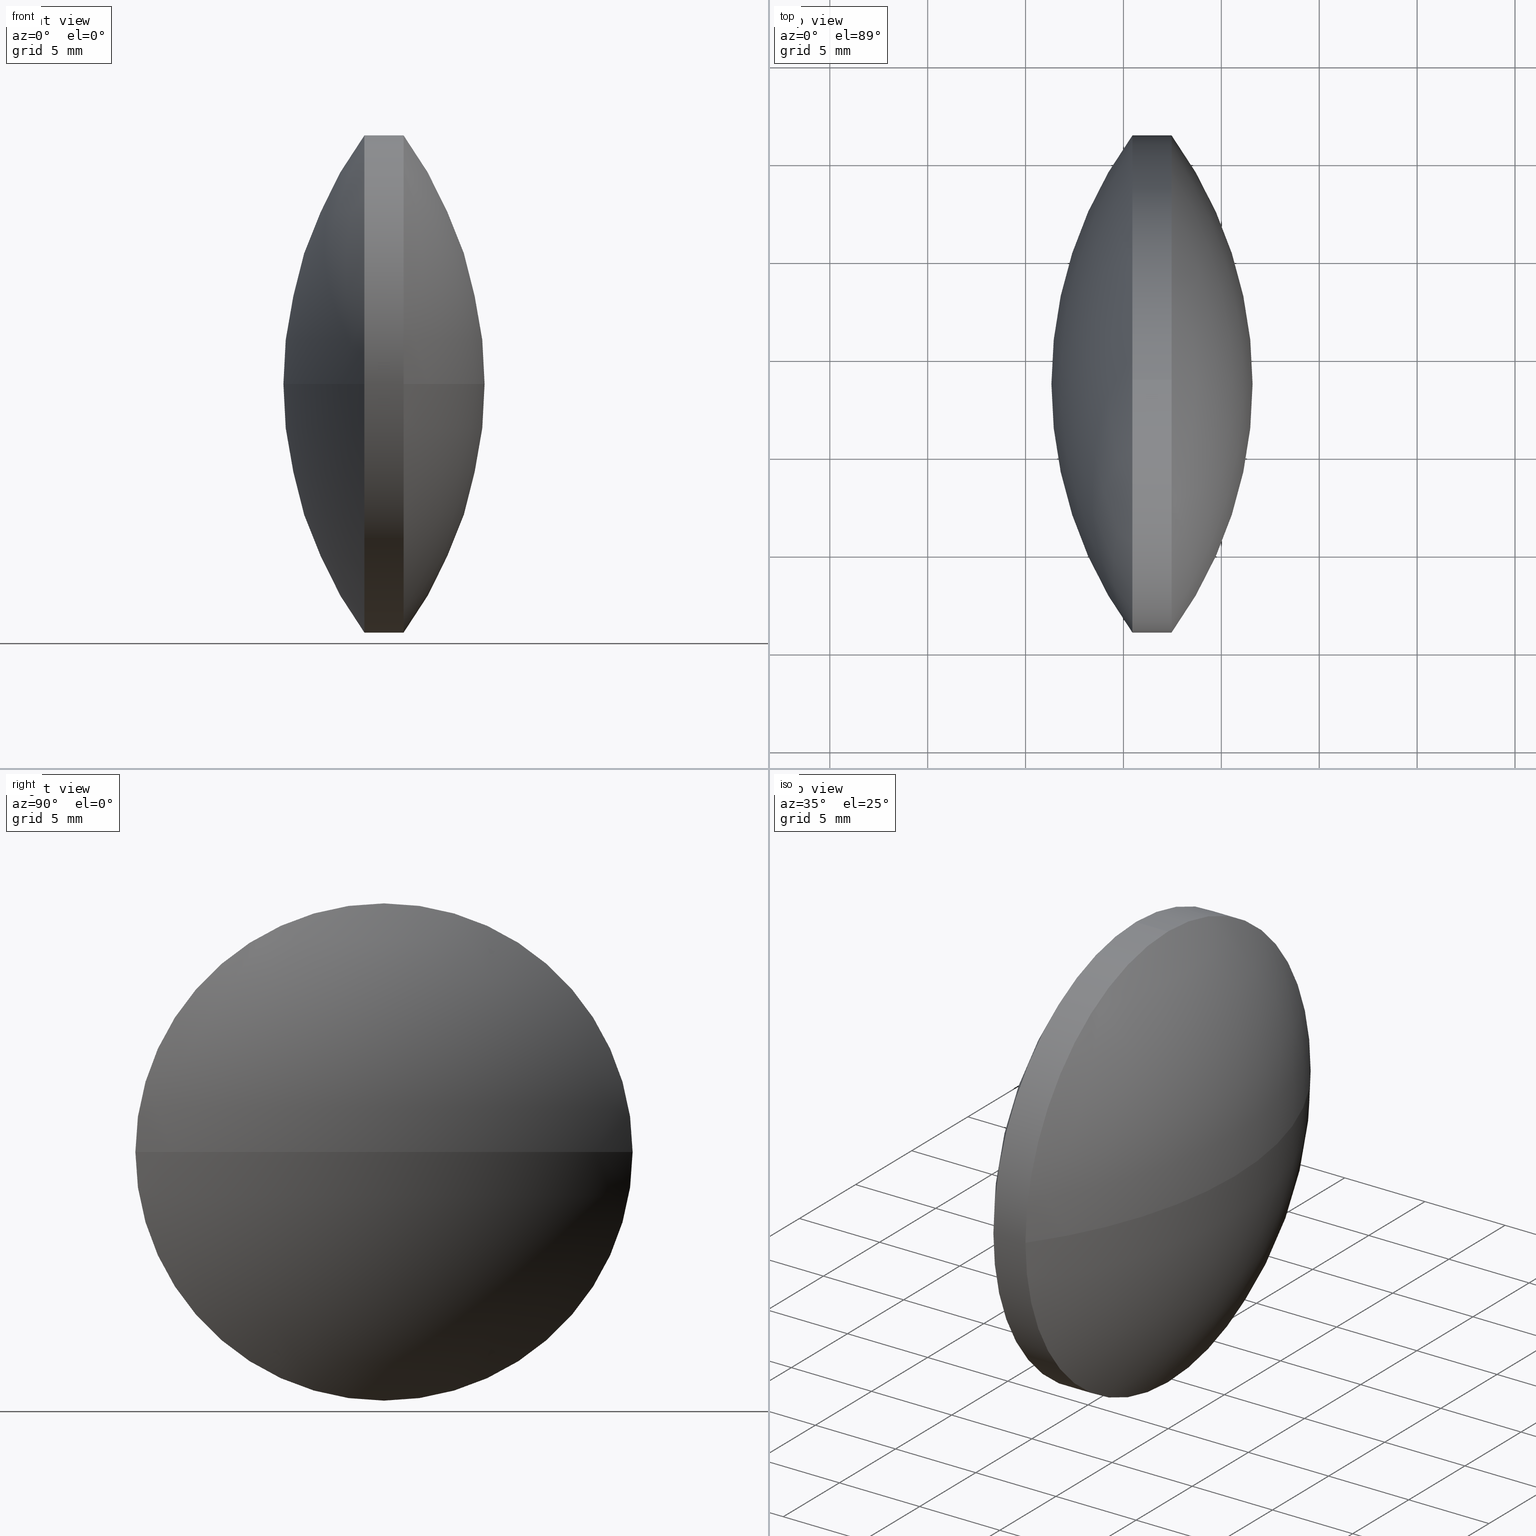
[diagram: canonical four-view strip — front | top / right | iso, engineering-drawing reading convention]
A machine part, canonical four-view strip (front | top / right | iso — engineering-drawing reading convention). The complete STEP part file that produces these views, byte-faithful:
ISO-10303-21;
HEADER;
FILE_DESCRIPTION (( 'STEP AP203' ),
    '1' );
FILE_NAME ('110097.STEP',
    '2019-07-08T06:24:45',
    ( '' ),
    ( '' ),
    'SwSTEP 2.0',
    'SolidWorks 2016',
    '' );
FILE_SCHEMA (( 'CONFIG_CONTROL_DESIGN' ));
ENDSEC;

DATA;
#1 = ORIENTED_EDGE ( 'NONE', *, *, #338, .F. ) ;
#2 = DIRECTION ( 'NONE',  ( 0.0000000000000000000, 0.0000000000000000000, 1.000000000000000000 ) ) ;
#3 = PERSON_AND_ORGANIZATION_ROLE ( 'classification_officer' ) ;
#4 = AXIS2_PLACEMENT_3D ( 'NONE', #295, #183, #216 ) ;
#5 = VERTEX_POINT ( 'NONE', #93 ) ;
#6 = APPLICATION_PROTOCOL_DEFINITION ( 'international standard', 'config_control_design', 1994, #165 ) ;
#7 = CC_DESIGN_APPROVAL ( #162, ( #147 ) ) ;
#8 = APPROVAL_ROLE ( '' ) ;
#9 = COORDINATED_UNIVERSAL_TIME_OFFSET ( 8, 0, .AHEAD. ) ;
#10 = EDGE_LOOP ( 'NONE', ( #120, #320, #149, #215 ) ) ;
#11 = EDGE_CURVE ( 'NONE', #5, #302, #306, .T. ) ;
#12 = CARTESIAN_POINT ( 'NONE',  ( 102.8733814727447100, 48.61611302318478100, 0.0000000000000000000 ) ) ;
#13 = COORDINATED_UNIVERSAL_TIME_OFFSET ( 8, 0, .AHEAD. ) ;
#14 = SPHERICAL_SURFACE ( 'NONE', #153, 21.55382375359854700 ) ;
#15 = VERTEX_POINT ( 'NONE', #124 ) ;
#16 = APPROVAL ( #282, 'δָ��' ) ;
#17 = COORDINATED_UNIVERSAL_TIME_OFFSET ( 8, 0, .AHEAD. ) ;
#18 = CIRCLE ( 'NONE', #286, 12.69999999999999600 ) ;
#19 = CIRCLE ( 'NONE', #25, 21.55382375359854300 ) ;
#20 = DIRECTION ( 'NONE',  ( -0.0000000000000000000, 0.0000000000000000000, -1.000000000000000000 ) ) ;
#21 = AXIS2_PLACEMENT_3D ( 'NONE', #78, #308, #275 ) ;
#22 = PRODUCT_DEFINITION_SHAPE ( 'NONE', 'NONE',  #23 ) ;
#23 = PRODUCT_DEFINITION ( 'δ֪', '', #56, #131 ) ;
#24 = ORIENTED_EDGE ( 'NONE', *, *, #11, .F. ) ;
#25 = AXIS2_PLACEMENT_3D ( 'NONE', #40, #294, #236 ) ;
#26 = DATE_AND_TIME ( #219, #116 ) ;
#27 = APPLICATION_PROTOCOL_DEFINITION ( 'international standard', 'config_control_design', 1994, #188 ) ;
#28 = APPROVAL_PERSON_ORGANIZATION ( #331, #162, #30 ) ;
#29 = VECTOR ( 'NONE', #266, 1000.000000000000000 ) ;
#30 = APPROVAL_ROLE ( '' ) ;
#31 = APPROVAL_STATUS ( 'not_yet_approved' ) ;
#32 = AXIS2_PLACEMENT_3D ( 'NONE', #284, #332, #169 ) ;
#33 = COORDINATED_UNIVERSAL_TIME_OFFSET ( 8, 0, .AHEAD. ) ;
#34 = CIRCLE ( 'NONE', #330, 21.55382375359857100 ) ;
#35 = APPLICATION_PROTOCOL_DEFINITION ( 'international standard', 'config_control_design', 1994, #109 ) ;
#36 = APPROVAL_PERSON_ORGANIZATION ( #37, #115, #305 ) ;
#37 = PERSON_AND_ORGANIZATION ( #245, #243 ) ;
#38 = EDGE_LOOP ( 'NONE', ( #111, #315, #289, #251 ) ) ;
#39 = CC_DESIGN_PERSON_AND_ORGANIZATION_ASSIGNMENT ( #134, #136, ( #213 ) ) ;
#40 = CARTESIAN_POINT ( 'NONE',  ( 70.04300607658039700, 48.61611302318478100, 0.0000000000000000000 ) ) ;
#41 = LOCAL_TIME ( 14, 24, 45.00000000000000000, #76 ) ;
#42 = CARTESIAN_POINT ( 'NONE',  ( 85.45852234609111500, 48.61611302318478100, -12.69999999999999600 ) ) ;
#43 = SHAPE_DEFINITION_REPRESENTATION ( #22, #321 ) ;
#44 = DIRECTION ( 'NONE',  ( -1.000000000000000000, -0.0000000000000000000, -0.0000000000000000000 ) ) ;
#45 = CIRCLE ( 'NONE', #333, 12.69999999999999600 ) ;
#46 = VERTEX_POINT ( 'NONE', #42 ) ;
#47 = AXIS2_PLACEMENT_3D ( 'NONE', #307, #328, #159 ) ;
#48 = DATE_AND_TIME ( #260, #84 ) ;
#49 = CC_DESIGN_PERSON_AND_ORGANIZATION_ASSIGNMENT ( #334, #248, ( #150 ) ) ;
#50 = PERSON_AND_ORGANIZATION_ROLE ( 'creator' ) ;
#51 = DIRECTION ( 'NONE',  ( 0.0000000000000000000, 0.0000000000000000000, 1.000000000000000000 ) ) ;
#52 = PRODUCT ( '110097', '110097', '', ( #254 ) ) ;
#53 = EDGE_CURVE ( 'NONE', #15, #138, #19, .T. ) ;
#54 = ORIENTED_EDGE ( 'NONE', *, *, #59, .T. ) ;
#55 =( NAMED_UNIT ( * ) PLANE_ANGLE_UNIT ( ) SI_UNIT ( $, .RADIAN. ) );
#56 = PRODUCT_DEFINITION_FORMATION_WITH_SPECIFIED_SOURCE ( '�κ�', '', #52, .NOT_KNOWN. ) ;
#57 = PERSON_AND_ORGANIZATION_ROLE ( 'design_supplier' ) ;
#58 = PERSON_AND_ORGANIZATION_ROLE ( 'creator' ) ;
#59 = EDGE_CURVE ( 'NONE', #299, #302, #100, .T. ) ;
#60 = PERSON_AND_ORGANIZATION ( #245, #243 ) ;
#61 = PERSON_AND_ORGANIZATION ( #245, #243 ) ;
#62 = APPROVAL_DATE_TIME ( #210, #313 ) ;
#63 = LINE ( 'NONE', #300, #117 ) ;
#64 = DIRECTION ( 'NONE',  ( -1.000000000000000000, -0.0000000000000000000, -0.0000000000000000000 ) ) ;
#65 = VERTEX_POINT ( 'NONE', #177 ) ;
#66 = CC_DESIGN_PERSON_AND_ORGANIZATION_ASSIGNMENT ( #231, #143, ( #56 ) ) ;
#67 = DIRECTION ( 'NONE',  ( 0.0000000000000000000, 1.000000000000000000, 0.0000000000000000000 ) ) ;
#68 = CARTESIAN_POINT ( 'NONE',  ( 85.45852234609111500, 61.31611302318477600, 0.0000000000000000000 ) ) ;
#69 = CIRCLE ( 'NONE', #345, 21.55382375359856400 ) ;
#70 = PRODUCT_RELATED_PRODUCT_CATEGORY ( 'detail', '', ( #52 ) ) ;
#71 = CALENDAR_DATE ( 2019, 8, 7 ) ;
#72 = ORIENTED_EDGE ( 'NONE', *, *, #322, .T. ) ;
#73 = ADVANCED_FACE ( 'NONE', ( #278 ), #202, .T. ) ;
#74 = AXIS2_PLACEMENT_3D ( 'NONE', #92, #207, #174 ) ;
#75 =( NAMED_UNIT ( * ) SI_UNIT ( $, .STERADIAN. ) SOLID_ANGLE_UNIT ( ) );
#76 = COORDINATED_UNIVERSAL_TIME_OFFSET ( 8, 0, .AHEAD. ) ;
#77 = ORIENTED_EDGE ( 'NONE', *, *, #301, .T. ) ;
#78 = CARTESIAN_POINT ( 'NONE',  ( 87.45786520323396500, 48.61611302318478100, 0.0000000000000000000 ) ) ;
#79 = DATE_TIME_ROLE ( 'classification_date' ) ;
#80 = ORIENTED_EDGE ( 'NONE', *, *, #86, .F. ) ;
#81 = APPROVAL_STATUS ( 'not_yet_approved' ) ;
#82 = DIRECTION ( 'NONE',  ( 0.0000000000000000000, 1.224646799147353200E-016, -1.000000000000000000 ) ) ;
#83 = COORDINATED_UNIVERSAL_TIME_OFFSET ( 8, 0, .AHEAD. ) ;
#84 = LOCAL_TIME ( 14, 24, 45.00000000000000000, #198 ) ;
#85 = FACE_OUTER_BOUND ( 'NONE', #240, .T. ) ;
#86 = EDGE_CURVE ( 'NONE', #15, #89, #97, .T. ) ;
#87 = DIRECTION ( 'NONE',  ( -1.000000000000000000, -0.0000000000000000000, -0.0000000000000000000 ) ) ;
#88 = DIRECTION ( 'NONE',  ( 0.0000000000000000000, 1.000000000000000000, 0.0000000000000000000 ) ) ;
#89 = VERTEX_POINT ( 'NONE', #146 ) ;
#90 = DIRECTION ( 'NONE',  ( -0.0000000000000000000, 0.0000000000000000000, -1.000000000000000000 ) ) ;
#91 = CC_DESIGN_PERSON_AND_ORGANIZATION_ASSIGNMENT ( #316, #325, ( #213 ) ) ;
#92 = CARTESIAN_POINT ( 'NONE',  ( 85.45852234609111500, 48.61611302318478100, 0.0000000000000000000 ) ) ;
#93 = CARTESIAN_POINT ( 'NONE',  ( 85.45852234609111500, 35.91611302318478500, -1.555301434917138400E-015 ) ) ;
#94 = PERSON_AND_ORGANIZATION ( #245, #243 ) ;
#95 = AXIS2_PLACEMENT_3D ( 'NONE', #98, #44, #168 ) ;
#96 = CALENDAR_DATE ( 2019, 8, 7 ) ;
#97 = CIRCLE ( 'NONE', #323, 21.55382375359855000 ) ;
#98 = CARTESIAN_POINT ( 'NONE',  ( 85.45852234609111500, 48.61611302318478100, 0.0000000000000000000 ) ) ;
#99 = CC_DESIGN_APPROVAL ( #313, ( #23 ) ) ;
#100 = LINE ( 'NONE', #237, #29 ) ;
#101 = DIRECTION ( 'NONE',  ( -1.000000000000000000, -0.0000000000000000000, -0.0000000000000000000 ) ) ;
#102 = DATE_AND_TIME ( #71, #276 ) ;
#103 = DIRECTION ( 'NONE',  ( 1.000000000000000000, 0.0000000000000000000, 0.0000000000000000000 ) ) ;
#104 = CALENDAR_DATE ( 2019, 8, 7 ) ;
#105 = CC_DESIGN_DATE_AND_TIME_ASSIGNMENT ( #123, #79, ( #285 ) ) ;
#106 = APPROVAL_STATUS ( 'not_yet_approved' ) ;
#107 = DATE_TIME_ROLE ( 'classification_date' ) ;
#108 = EDGE_CURVE ( 'NONE', #138, #193, #130, .T. ) ;
#109 = APPLICATION_CONTEXT ( 'configuration controlled 3d designs of mechanical parts and assemblies' ) ;
#110 = LOCAL_TIME ( 14, 24, 45.00000000000000000, #181 ) ;
#111 = ORIENTED_EDGE ( 'NONE', *, *, #53, .F. ) ;
#112 = CARTESIAN_POINT ( 'NONE',  ( 0.0000000000000000000, 0.0000000000000000000, 0.0000000000000000000 ) ) ;
#113 = CC_DESIGN_SECURITY_CLASSIFICATION ( #285, ( #56 ) ) ;
#114 = APPROVAL_ROLE ( '' ) ;
#115 = APPROVAL ( #106, 'δָ��' ) ;
#116 = LOCAL_TIME ( 14, 24, 45.00000000000000000, #9 ) ;
#117 = VECTOR ( 'NONE', #101, 1000.000000000000000 ) ;
#118 = AXIS2_PLACEMENT_3D ( 'NONE', #337, #90, #88 ) ;
#119 = APPROVAL_PERSON_ORGANIZATION ( #269, #336, #218 ) ;
#120 = ORIENTED_EDGE ( 'NONE', *, *, #235, .F. ) ;
#121 = DIRECTION ( 'NONE',  ( 0.0000000000000000000, 1.000000000000000000, 1.224646799147353200E-016 ) ) ;
#122 = CARTESIAN_POINT ( 'NONE',  ( 79.30540135083715800, 48.61611302318478100, 0.0000000000000000000 ) ) ;
#123 = DATE_AND_TIME ( #296, #41 ) ;
#124 = CARTESIAN_POINT ( 'NONE',  ( 91.59682983017894700, 48.61611302318478100, 0.0000000000000000000 ) ) ;
#125 = DATE_AND_TIME ( #104, #110 ) ;
#126 = CARTESIAN_POINT ( 'NONE',  ( 87.45786520323396500, 61.31611302318477600, 0.0000000000000000000 ) ) ;
#127 = DIRECTION ( 'NONE',  ( -1.000000000000000000, -0.0000000000000000000, -0.0000000000000000000 ) ) ;
#128 = ADVANCED_FACE ( 'NONE', ( #163 ), #155, .T. ) ;
#129 = AXIS2_PLACEMENT_3D ( 'NONE', #152, #340, #67 ) ;
#130 = CIRCLE ( 'NONE', #224, 12.69999999999999600 ) ;
#131 = DESIGN_CONTEXT ( 'detailed design', #165, 'design' ) ;
#132 = UNCERTAINTY_MEASURE_WITH_UNIT (LENGTH_MEASURE( 1.000000000000000100E-005 ), #226, 'distance_accuracy_value', 'NONE');
#133 = DATE_AND_TIME ( #214, #185 ) ;
#134 = PERSON_AND_ORGANIZATION ( #245, #243 ) ;
#135 = CC_DESIGN_DATE_AND_TIME_ASSIGNMENT ( #272, #107, ( #147 ) ) ;
#136 = PERSON_AND_ORGANIZATION_ROLE ( 'creator' ) ;
#137 = DATE_AND_TIME ( #161, #239 ) ;
#138 = VERTEX_POINT ( 'NONE', #126 ) ;
#139 = CC_DESIGN_APPROVAL ( #115, ( #213 ) ) ;
#140 = DIRECTION ( 'NONE',  ( -1.000000000000000000, -0.0000000000000000000, -0.0000000000000000000 ) ) ;
#141 = CARTESIAN_POINT ( 'NONE',  ( 87.45786520323396500, 48.61611302318478100, 12.69999999999999600 ) ) ;
#142 = ORIENTED_EDGE ( 'NONE', *, *, #59, .F. ) ;
#143 = PERSON_AND_ORGANIZATION_ROLE ( 'creator' ) ;
#144 = COORDINATED_UNIVERSAL_TIME_OFFSET ( 8, 0, .AHEAD. ) ;
#145 = EDGE_CURVE ( 'NONE', #302, #229, #232, .T. ) ;
#146 = CARTESIAN_POINT ( 'NONE',  ( 87.45786520323396500, 35.91611302318478500, -1.555301434917138000E-015 ) ) ;
#147 = SECURITY_CLASSIFICATION ( '', '', #164 ) ;
#148 = APPROVAL_PERSON_ORGANIZATION ( #60, #16, #114 ) ;
#149 = ORIENTED_EDGE ( 'NONE', *, *, #145, .T. ) ;
#150 = PRODUCT ( '110097', '110097', '', ( #227 ) ) ;
#151 =( GEOMETRIC_REPRESENTATION_CONTEXT ( 3 ) GLOBAL_UNCERTAINTY_ASSIGNED_CONTEXT ( ( #132 ) ) GLOBAL_UNIT_ASSIGNED_CONTEXT ( ( #226, #55, #75 ) ) REPRESENTATION_CONTEXT ( 'NONE', 'WORKASPACE' ) );
#152 = CARTESIAN_POINT ( 'NONE',  ( 70.04300607658039700, 48.61611302318478100, 0.0000000000000000000 ) ) ;
#153 = AXIS2_PLACEMENT_3D ( 'NONE', #317, #20, #267 ) ;
#154 = PERSON_AND_ORGANIZATION ( #245, #243 ) ;
#155 = SPHERICAL_SURFACE ( 'NONE', #118, 21.55382375359857100 ) ;
#156 = CARTESIAN_POINT ( 'NONE',  ( 102.8733814727447100, 48.61611302318478100, 0.0000000000000000000 ) ) ;
#157 = ORIENTED_EDGE ( 'NONE', *, *, #53, .T. ) ;
#158 = ADVANCED_FACE ( 'NONE', ( #85 ), #186, .T. ) ;
#159 = DIRECTION ( 'NONE',  ( 0.0000000000000000000, 0.0000000000000000000, 1.000000000000000000 ) ) ;
#160 = CALENDAR_DATE ( 2019, 8, 7 ) ;
#161 = CALENDAR_DATE ( 2019, 8, 7 ) ;
#162 = APPROVAL ( #189, 'δָ��' ) ;
#163 = FACE_OUTER_BOUND ( 'NONE', #256, .T. ) ;
#164 = SECURITY_CLASSIFICATION_LEVEL ( 'unclassified' ) ;
#165 = APPLICATION_CONTEXT ( 'configuration controlled 3d designs of mechanical parts and assemblies' ) ;
#166 = CARTESIAN_POINT ( 'NONE',  ( 87.45786520323396500, 48.61611302318478100, 0.0000000000000000000 ) ) ;
#167 = ORIENTED_EDGE ( 'NONE', *, *, #203, .F. ) ;
#168 = DIRECTION ( 'NONE',  ( 0.0000000000000000000, 0.0000000000000000000, 1.000000000000000000 ) ) ;
#169 = DIRECTION ( 'NONE',  ( 0.0000000000000000000, 1.000000000000000000, 0.0000000000000000000 ) ) ;
#170 = EDGE_LOOP ( 'NONE', ( #80, #157, #293, #1 ) ) ;
#171 = CC_DESIGN_SECURITY_CLASSIFICATION ( #147, ( #213 ) ) ;
#172 = SPHERICAL_SURFACE ( 'NONE', #32, 21.55382375359857100 ) ;
#173 = ORIENTED_EDGE ( 'NONE', *, *, #108, .T. ) ;
#174 = DIRECTION ( 'NONE',  ( 0.0000000000000000000, 0.0000000000000000000, 1.000000000000000000 ) ) ;
#175 = APPROVAL_PERSON_ORGANIZATION ( #264, #246, #8 ) ;
#176 = APPROVAL_DATE_TIME ( #48, #336 ) ;
#177 = CARTESIAN_POINT ( 'NONE',  ( 81.31955771914613300, 48.61611302318478100, 0.0000000000000000000 ) ) ;
#178 = CC_DESIGN_PERSON_AND_ORGANIZATION_ASSIGNMENT ( #201, #191, ( #52 ) ) ;
#179 = DIRECTION ( 'NONE',  ( -0.0000000000000000000, 0.0000000000000000000, 1.000000000000000000 ) ) ;
#180 = EDGE_CURVE ( 'NONE', #229, #65, #34, .T. ) ;
#181 = COORDINATED_UNIVERSAL_TIME_OFFSET ( 8, 0, .AHEAD. ) ;
#182 = ORIENTED_EDGE ( 'NONE', *, *, #253, .F. ) ;
#183 = DIRECTION ( 'NONE',  ( -1.000000000000000000, -0.0000000000000000000, -0.0000000000000000000 ) ) ;
#184 = AXIS2_PLACEMENT_3D ( 'NONE', #112, #2, #255 ) ;
#185 = LOCAL_TIME ( 14, 24, 45.00000000000000000, #17 ) ;
#186 = CYLINDRICAL_SURFACE ( 'NONE', #268, 12.69999999999999600 ) ;
#187 = ADVANCED_FACE ( 'NONE', ( #335 ), #14, .T. ) ;
#188 = APPLICATION_CONTEXT ( 'configuration controlled 3d designs of mechanical parts and assemblies' ) ;
#189 = APPROVAL_STATUS ( 'not_yet_approved' ) ;
#190 = DESIGN_CONTEXT ( 'detailed design', #188, 'design' ) ;
#191 = PERSON_AND_ORGANIZATION_ROLE ( 'design_owner' ) ;
#192 = CC_DESIGN_PERSON_AND_ORGANIZATION_ASSIGNMENT ( #318, #50, ( #206 ) ) ;
#193 = VERTEX_POINT ( 'NONE', #242 ) ;
#194 = DIRECTION ( 'NONE',  ( 0.0000000000000000000, 0.0000000000000000000, 1.000000000000000000 ) ) ;
#195 = CARTESIAN_POINT ( 'NONE',  ( 87.45786520323396500, 48.61611302318478100, 0.0000000000000000000 ) ) ;
#196 = MANIFOLD_SOLID_BREP ( '��ת2', #344 ) ;
#197 = APPROVAL_DATE_TIME ( #137, #162 ) ;
#198 = COORDINATED_UNIVERSAL_TIME_OFFSET ( 8, 0, .AHEAD. ) ;
#199 = DIRECTION ( 'NONE',  ( 0.0000000000000000000, 1.000000000000000000, 1.224646799147353700E-016 ) ) ;
#200 = CC_DESIGN_PERSON_AND_ORGANIZATION_ASSIGNMENT ( #249, #57, ( #56 ) ) ;
#201 = PERSON_AND_ORGANIZATION ( #245, #243 ) ;
#202 = SPHERICAL_SURFACE ( 'NONE', #129, 21.55382375359854700 ) ;
#203 = EDGE_CURVE ( 'NONE', #229, #46, #297, .T. ) ;
#204 = CARTESIAN_POINT ( 'NONE',  ( 87.45786520323396500, 48.61611302318478100, 0.0000000000000000000 ) ) ;
#205 = APPROVAL_DATE_TIME ( #314, #115 ) ;
#206 = PRODUCT_DEFINITION ( 'δ֪', '', #213, #190 ) ;
#207 = DIRECTION ( 'NONE',  ( -1.000000000000000000, -0.0000000000000000000, -0.0000000000000000000 ) ) ;
#208 = CARTESIAN_POINT ( 'NONE',  ( 70.04300607658039700, 48.61611302318478100, 0.0000000000000000000 ) ) ;
#209 = DIRECTION ( 'NONE',  ( 0.0000000000000000000, 0.0000000000000000000, 1.000000000000000000 ) ) ;
#210 = DATE_AND_TIME ( #160, #228 ) ;
#211 = CYLINDRICAL_SURFACE ( 'NONE', #4, 12.69999999999999600 ) ;
#212 = EDGE_LOOP ( 'NONE', ( #173, #283, #167, #310, #142, #222 ) ) ;
#213 = PRODUCT_DEFINITION_FORMATION_WITH_SPECIFIED_SOURCE ( '�κ�', '', #150, .NOT_KNOWN. ) ;
#214 = CALENDAR_DATE ( 2019, 8, 7 ) ;
#215 = ORIENTED_EDGE ( 'NONE', *, *, #180, .T. ) ;
#216 = DIRECTION ( 'NONE',  ( 0.0000000000000000000, 0.0000000000000000000, 1.000000000000000000 ) ) ;
#217 = ADVANCED_FACE ( 'NONE', ( #288 ), #172, .T. ) ;
#218 = APPROVAL_ROLE ( '' ) ;
#219 = CALENDAR_DATE ( 2019, 8, 7 ) ;
#220 = APPLICATION_PROTOCOL_DEFINITION ( 'international standard', 'config_control_design', 1994, #279 ) ;
#221 = LOCAL_TIME ( 14, 24, 45.00000000000000000, #33 ) ;
#222 = ORIENTED_EDGE ( 'NONE', *, *, #259, .T. ) ;
#223 = DIRECTION ( 'NONE',  ( -1.000000000000000000, -0.0000000000000000000, -0.0000000000000000000 ) ) ;
#224 = AXIS2_PLACEMENT_3D ( 'NONE', #204, #87, #262 ) ;
#225 = PRODUCT_DEFINITION_SHAPE ( 'NONE', 'NONE',  #206 ) ;
#226 =( LENGTH_UNIT ( ) NAMED_UNIT ( * ) SI_UNIT ( .MILLI., .METRE. ) );
#227 = MECHANICAL_CONTEXT ( 'NONE', #109, 'mechanical' ) ;
#228 = LOCAL_TIME ( 14, 24, 45.00000000000000000, #13 ) ;
#229 = VERTEX_POINT ( 'NONE', #68 ) ;
#230 = PERSON_AND_ORGANIZATION_ROLE ( 'classification_officer' ) ;
#231 = PERSON_AND_ORGANIZATION ( #245, #243 ) ;
#232 = CIRCLE ( 'NONE', #280, 12.69999999999999600 ) ;
#233 = PRODUCT_RELATED_PRODUCT_CATEGORY ( 'detail', '', ( #150 ) ) ;
#234 = ORIENTED_EDGE ( 'NONE', *, *, #338, .T. ) ;
#235 = EDGE_CURVE ( 'NONE', #5, #65, #69, .T. ) ;
#236 = DIRECTION ( 'NONE',  ( 1.000000000000000000, 0.0000000000000000000, 0.0000000000000000000 ) ) ;
#237 = CARTESIAN_POINT ( 'NONE',  ( 79.30540135083715800, 48.61611302318478100, 12.69999999999999600 ) ) ;
#238 = PERSON_AND_ORGANIZATION ( #245, #243 ) ;
#239 = LOCAL_TIME ( 14, 24, 45.00000000000000000, #312 ) ;
#240 = EDGE_LOOP ( 'NONE', ( #182, #72, #234, #54, #24, #261 ) ) ;
#241 = CC_DESIGN_APPROVAL ( #336, ( #206 ) ) ;
#242 = CARTESIAN_POINT ( 'NONE',  ( 87.45786520323396500, 48.61611302318478100, -12.69999999999999600 ) ) ;
#243 = ORGANIZATION ( 'δָ��', 'δָ��', '' ) ;
#244 = ORIENTED_EDGE ( 'NONE', *, *, #180, .F. ) ;
#245 = PERSON ( 'δָ��', 'δָ��', 'δָ��', ('δָ��'), ('δָ��'), ('δָ��') ) ;
#246 = APPROVAL ( #81, 'δָ��' ) ;
#247 = ADVANCED_FACE ( 'NONE', ( #258 ), #211, .T. ) ;
#248 = PERSON_AND_ORGANIZATION_ROLE ( 'design_owner' ) ;
#249 = PERSON_AND_ORGANIZATION ( #245, #243 ) ;
#250 = CALENDAR_DATE ( 2019, 8, 7 ) ;
#251 = ORIENTED_EDGE ( 'NONE', *, *, #108, .F. ) ;
#252 = DATE_TIME_ROLE ( 'creation_date' ) ;
#253 = EDGE_CURVE ( 'NONE', #193, #46, #63, .T. ) ;
#254 = MECHANICAL_CONTEXT ( 'NONE', #279, 'mechanical' ) ;
#255 = DIRECTION ( 'NONE',  ( 1.000000000000000000, 0.0000000000000000000, 0.0000000000000000000 ) ) ;
#256 = EDGE_LOOP ( 'NONE', ( #77, #329, #244, #270 ) ) ;
#257 = DATE_TIME_ROLE ( 'creation_date' ) ;
#258 = FACE_OUTER_BOUND ( 'NONE', #212, .T. ) ;
#259 = EDGE_CURVE ( 'NONE', #299, #138, #343, .T. ) ;
#260 = CALENDAR_DATE ( 2019, 8, 7 ) ;
#261 = ORIENTED_EDGE ( 'NONE', *, *, #301, .F. ) ;
#262 = DIRECTION ( 'NONE',  ( 0.0000000000000000000, 0.0000000000000000000, 1.000000000000000000 ) ) ;
#263 = DIRECTION ( 'NONE',  ( 0.0000000000000000000, 0.0000000000000000000, 1.000000000000000000 ) ) ;
#264 = PERSON_AND_ORGANIZATION ( #245, #243 ) ;
#265 = CC_DESIGN_APPROVAL ( #246, ( #56 ) ) ;
#266 = DIRECTION ( 'NONE',  ( -1.000000000000000000, -0.0000000000000000000, -0.0000000000000000000 ) ) ;
#267 = DIRECTION ( 'NONE',  ( 0.0000000000000000000, 1.000000000000000000, 0.0000000000000000000 ) ) ;
#268 = AXIS2_PLACEMENT_3D ( 'NONE', #122, #64, #263 ) ;
#269 = PERSON_AND_ORGANIZATION ( #245, #243 ) ;
#270 = ORIENTED_EDGE ( 'NONE', *, *, #203, .T. ) ;
#271 = APPROVAL_PERSON_ORGANIZATION ( #238, #313, #311 ) ;
#272 = DATE_AND_TIME ( #250, #339 ) ;
#273 = DIRECTION ( 'NONE',  ( 0.0000000000000000000, 0.0000000000000000000, 1.000000000000000000 ) ) ;
#274 = AXIS2_PLACEMENT_3D ( 'NONE', #303, #273, #103 ) ;
#275 = DIRECTION ( 'NONE',  ( 0.0000000000000000000, 0.0000000000000000000, 1.000000000000000000 ) ) ;
#276 = LOCAL_TIME ( 14, 24, 45.00000000000000000, #83 ) ;
#277 = CIRCLE ( 'NONE', #47, 12.69999999999999600 ) ;
#278 = FACE_OUTER_BOUND ( 'NONE', #38, .T. ) ;
#279 = APPLICATION_CONTEXT ( 'configuration controlled 3d designs of mechanical parts and assemblies' ) ;
#280 = AXIS2_PLACEMENT_3D ( 'NONE', #292, #127, #209 ) ;
#281 = SECURITY_CLASSIFICATION_LEVEL ( 'unclassified' ) ;
#282 = APPROVAL_STATUS ( 'not_yet_approved' ) ;
#283 = ORIENTED_EDGE ( 'NONE', *, *, #253, .T. ) ;
#284 = CARTESIAN_POINT ( 'NONE',  ( 102.8733814727447100, 48.61611302318478100, 0.0000000000000000000 ) ) ;
#285 = SECURITY_CLASSIFICATION ( '', '', #281 ) ;
#286 = AXIS2_PLACEMENT_3D ( 'NONE', #195, #223, #51 ) ;
#287 = APPROVAL_DATE_TIME ( #26, #16 ) ;
#288 = FACE_OUTER_BOUND ( 'NONE', #10, .T. ) ;
#289 = ORIENTED_EDGE ( 'NONE', *, *, #322, .F. ) ;
#290 = CC_DESIGN_DATE_AND_TIME_ASSIGNMENT ( #125, #252, ( #206 ) ) ;
#291 = DIRECTION ( 'NONE',  ( 0.0000000000000000000, 1.224646799147353200E-016, -1.000000000000000000 ) ) ;
#292 = CARTESIAN_POINT ( 'NONE',  ( 85.45852234609111500, 48.61611302318478100, 0.0000000000000000000 ) ) ;
#293 = ORIENTED_EDGE ( 'NONE', *, *, #259, .F. ) ;
#294 = DIRECTION ( 'NONE',  ( -0.0000000000000000000, 0.0000000000000000000, 1.000000000000000000 ) ) ;
#295 = CARTESIAN_POINT ( 'NONE',  ( 79.30540135083715800, 48.61611302318478100, 0.0000000000000000000 ) ) ;
#296 = CALENDAR_DATE ( 2019, 8, 7 ) ;
#297 = CIRCLE ( 'NONE', #95, 12.69999999999999600 ) ;
#298 = CC_DESIGN_PERSON_AND_ORGANIZATION_ASSIGNMENT ( #61, #3, ( #147 ) ) ;
#299 = VERTEX_POINT ( 'NONE', #141 ) ;
#300 = CARTESIAN_POINT ( 'NONE',  ( 79.30540135083715800, 48.61611302318478100, -12.69999999999999600 ) ) ;
#301 = EDGE_CURVE ( 'NONE', #46, #5, #277, .T. ) ;
#302 = VERTEX_POINT ( 'NONE', #324 ) ;
#303 = CARTESIAN_POINT ( 'NONE',  ( 0.0000000000000000000, 0.0000000000000000000, 0.0000000000000000000 ) ) ;
#304 = APPROVAL_DATE_TIME ( #102, #246 ) ;
#305 = APPROVAL_ROLE ( '' ) ;
#306 = CIRCLE ( 'NONE', #74, 12.69999999999999600 ) ;
#307 = CARTESIAN_POINT ( 'NONE',  ( 85.45852234609111500, 48.61611302318478100, 0.0000000000000000000 ) ) ;
#308 = DIRECTION ( 'NONE',  ( -1.000000000000000000, -0.0000000000000000000, -0.0000000000000000000 ) ) ;
#309 = CC_DESIGN_DATE_AND_TIME_ASSIGNMENT ( #133, #257, ( #23 ) ) ;
#310 = ORIENTED_EDGE ( 'NONE', *, *, #145, .F. ) ;
#311 = APPROVAL_ROLE ( '' ) ;
#312 = COORDINATED_UNIVERSAL_TIME_OFFSET ( 8, 0, .AHEAD. ) ;
#313 = APPROVAL ( #31, 'δָ��' ) ;
#314 = DATE_AND_TIME ( #96, #221 ) ;
#315 = ORIENTED_EDGE ( 'NONE', *, *, #86, .T. ) ;
#316 = PERSON_AND_ORGANIZATION ( #245, #243 ) ;
#317 = CARTESIAN_POINT ( 'NONE',  ( 70.04300607658039700, 48.61611302318478100, 0.0000000000000000000 ) ) ;
#318 = PERSON_AND_ORGANIZATION ( #245, #243 ) ;
#319 = CC_DESIGN_APPROVAL ( #16, ( #285 ) ) ;
#320 = ORIENTED_EDGE ( 'NONE', *, *, #11, .T. ) ;
#321 = ADVANCED_BREP_SHAPE_REPRESENTATION ( '110097', ( #196, #274 ), #151 ) ;
#322 = EDGE_CURVE ( 'NONE', #193, #89, #18, .T. ) ;
#323 = AXIS2_PLACEMENT_3D ( 'NONE', #208, #291, #121 ) ;
#324 = CARTESIAN_POINT ( 'NONE',  ( 85.45852234609111500, 48.61611302318478100, 12.69999999999999600 ) ) ;
#325 = PERSON_AND_ORGANIZATION_ROLE ( 'design_supplier' ) ;
#326 = CC_DESIGN_PERSON_AND_ORGANIZATION_ASSIGNMENT ( #94, #58, ( #23 ) ) ;
#327 = APPROVAL_STATUS ( 'not_yet_approved' ) ;
#328 = DIRECTION ( 'NONE',  ( -1.000000000000000000, -0.0000000000000000000, -0.0000000000000000000 ) ) ;
#329 = ORIENTED_EDGE ( 'NONE', *, *, #235, .T. ) ;
#330 = AXIS2_PLACEMENT_3D ( 'NONE', #156, #179, #342 ) ;
#331 = PERSON_AND_ORGANIZATION ( #245, #243 ) ;
#332 = DIRECTION ( 'NONE',  ( -0.0000000000000000000, 0.0000000000000000000, -1.000000000000000000 ) ) ;
#333 = AXIS2_PLACEMENT_3D ( 'NONE', #166, #140, #194 ) ;
#334 = PERSON_AND_ORGANIZATION ( #245, #243 ) ;
#335 = FACE_OUTER_BOUND ( 'NONE', #170, .T. ) ;
#336 = APPROVAL ( #327, 'δָ��' ) ;
#337 = CARTESIAN_POINT ( 'NONE',  ( 102.8733814727447100, 48.61611302318478100, 0.0000000000000000000 ) ) ;
#338 = EDGE_CURVE ( 'NONE', #89, #299, #45, .T. ) ;
#339 = LOCAL_TIME ( 14, 24, 45.00000000000000000, #144 ) ;
#340 = DIRECTION ( 'NONE',  ( -0.0000000000000000000, 0.0000000000000000000, -1.000000000000000000 ) ) ;
#341 = CC_DESIGN_PERSON_AND_ORGANIZATION_ASSIGNMENT ( #154, #230, ( #285 ) ) ;
#342 = DIRECTION ( 'NONE',  ( 1.000000000000000000, 0.0000000000000000000, 0.0000000000000000000 ) ) ;
#343 = CIRCLE ( 'NONE', #21, 12.69999999999999600 ) ;
#344 = CLOSED_SHELL ( 'NONE', ( #128, #247, #73, #187, #158, #217 ) ) ;
#345 = AXIS2_PLACEMENT_3D ( 'NONE', #12, #82, #199 ) ;
ENDSEC;
END-ISO-10303-21;
